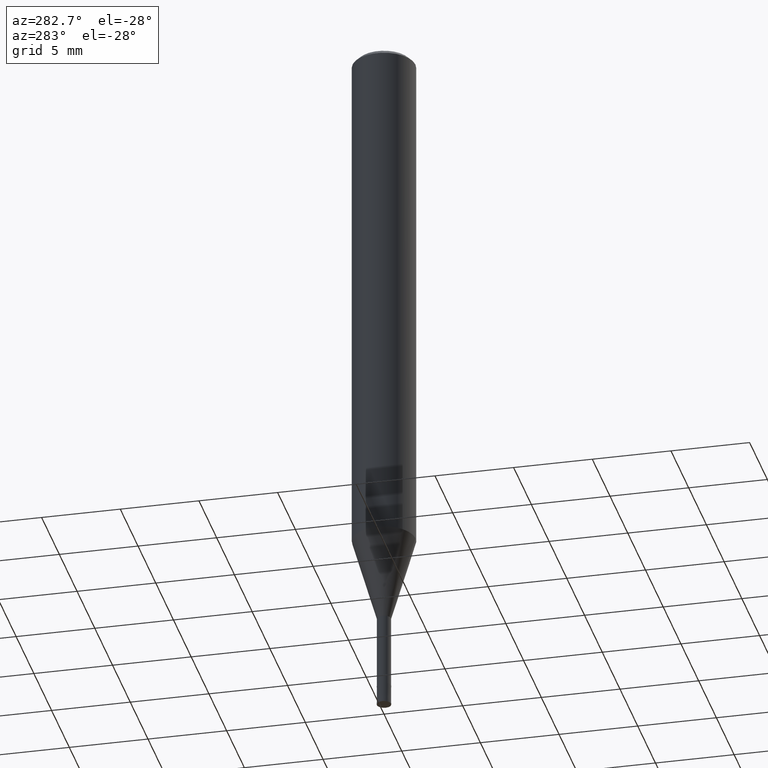
[diagram: clean part render]
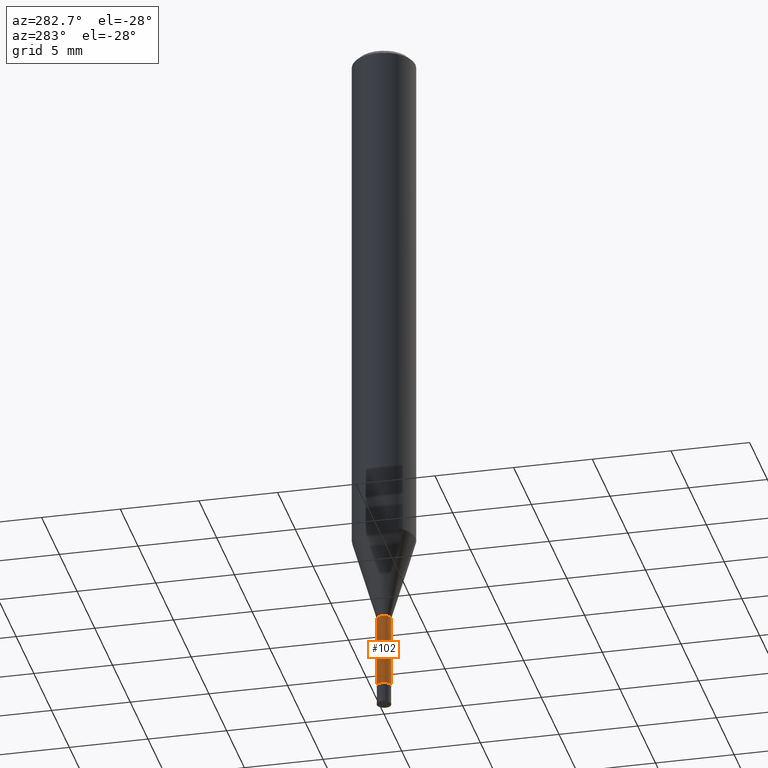
[diagram: same view with one face highlighted and labeled with its STEP entity id]
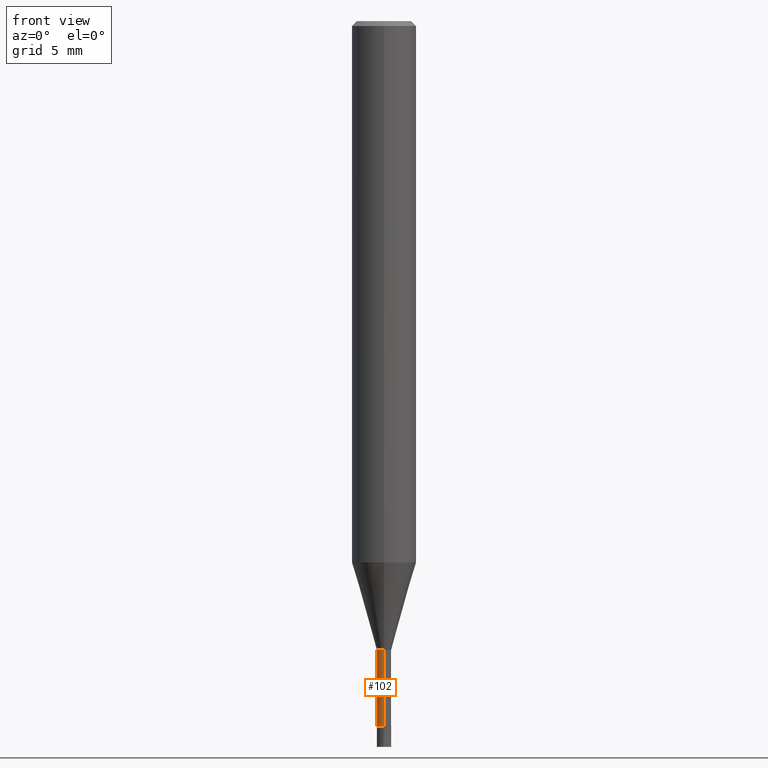
[diagram: same view with one face highlighted and labeled with its STEP entity id]
A machine part, auxiliary view. The second image highlights one B-rep face of the part: STEP entity #102.
A second angle (front view) of the same face is appended — the face is thin or edge-on in the first view.
In plain terms, the highlighted cylindrical surface (edge-blend (fillet) strip) has radius 0.44 mm, axis along (-0, -0, 1).
Its self-contained STEP definition (entity closure, byte-faithful):
#102=ADVANCED_FACE('',(#240),#241,.T.);
#126=VERTEX_POINT('',#271);
#150=VERTEX_POINT('',#297);
#154=VERTEX_POINT('',#301);
#156=EDGE_CURVE('',#126,#150,#303,.T.);
#160=EDGE_CURVE('',#154,#126,#308,.T.);
#172=EDGE_CURVE('',#186,#150,#323,.T.);
#186=VERTEX_POINT('',#339);
#190=EDGE_CURVE('',#186,#154,#343,.T.);
#240=FACE_OUTER_BOUND('',#390,.T.);
#241=CYLINDRICAL_SURFACE('',#391,0.43995);
#271=CARTESIAN_POINT('',(0.0,0.43995,-39.0));
#297=CARTESIAN_POINT('',(0.0,0.43995,-43.7));
#301=CARTESIAN_POINT('',(5.38765565364155E-017,-0.43995,-39.0));
#303=LINE('',#470,#471);
#308=CIRCLE('',#477,0.43995);
#323=CIRCLE('',#492,0.43995);
#339=CARTESIAN_POINT('',(5.38765565364155E-017,-0.43995,-43.7));
#343=LINE('',#516,#517);
#390=EDGE_LOOP('',(#561,#562,#563,#564));
#391=AXIS2_PLACEMENT_3D('',#565,#566,#567);
#470=CARTESIAN_POINT('',(-5.38765565364155E-017,0.43995,-41.35));
#471=VECTOR('',#656,1.0);
#477=AXIS2_PLACEMENT_3D('',#663,#664,#665);
#492=AXIS2_PLACEMENT_3D('',#683,#684,#685);
#516=CARTESIAN_POINT('',(5.38765565364155E-017,-0.43995,-41.35));
#517=VECTOR('',#704,1.0);
#561=ORIENTED_EDGE('',*,*,#156,.T.);
#562=ORIENTED_EDGE('',*,*,#172,.F.);
#563=ORIENTED_EDGE('',*,*,#190,.T.);
#564=ORIENTED_EDGE('',*,*,#160,.T.);
#565=CARTESIAN_POINT('',(0.0,0.0,-41.35));
#566=DIRECTION('',(-0.0,-0.0,1.0));
#567=DIRECTION('',(0.0,1.0,0.0));
#656=DIRECTION('',(0.0,0.0,-1.0));
#663=CARTESIAN_POINT('',(0.0,0.0,-39.0));
#664=DIRECTION('',(0.0,0.0,-1.0));
#665=DIRECTION('',(0.0,1.0,0.0));
#683=CARTESIAN_POINT('',(0.0,0.0,-43.7));
#684=DIRECTION('',(0.0,0.0,-1.0));
#685=DIRECTION('',(0.0,1.0,0.0));
#704=DIRECTION('',(-0.0,-0.0,1.0));